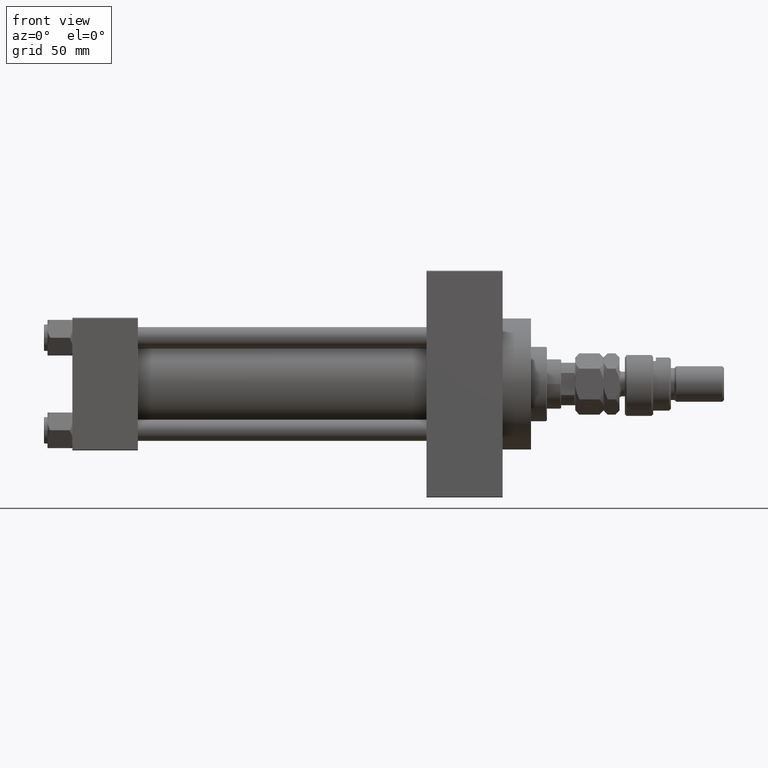
[diagram: clean part render]
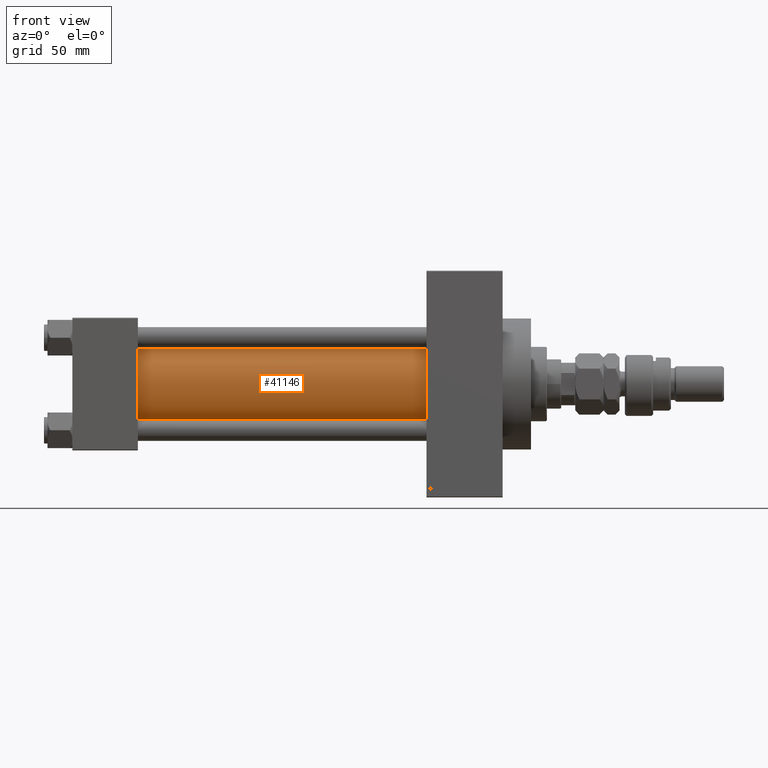
[diagram: same view with one face highlighted and labeled with its STEP entity id]
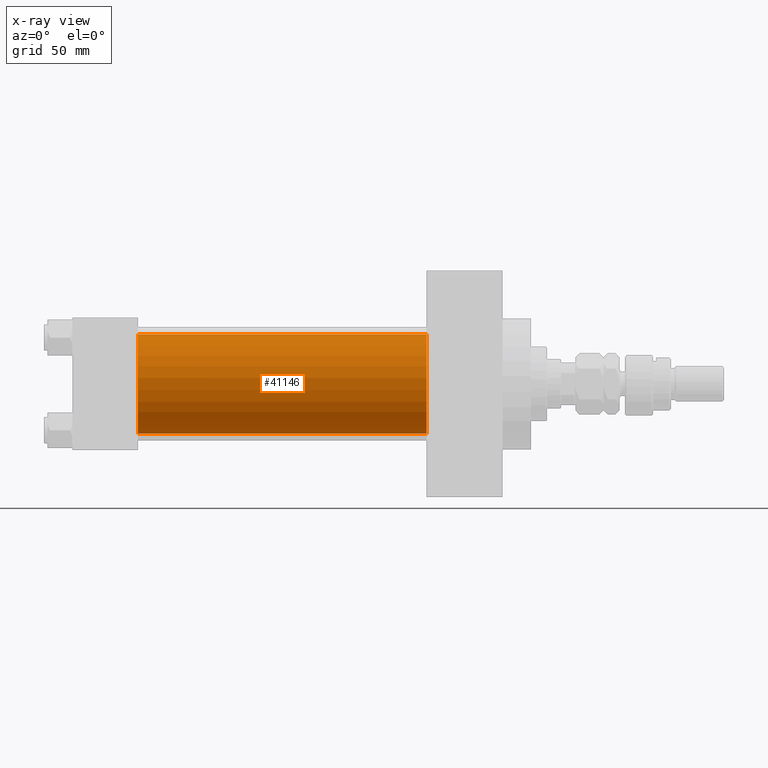
[diagram: x-ray of the same camera — body ghosted, the highlighted face saturated]
A machine part, front view. The second image highlights one B-rep face of the part: STEP entity #41146.
The next image is the same camera in x-ray: the body ghosted, the highlighted face saturated — about 0% of this face is hidden behind the body in this view.
In plain terms, the highlighted cylindrical surface (partial cylindrical patch) has radius 28 mm, axis along (-1, -0, -0).
Its self-contained STEP definition (entity closure, byte-faithful):
#609 = EDGE_CURVE ( 'NONE', #34368, #45056, #12576, .T. ) ;
#4954 = AXIS2_PLACEMENT_3D ( 'NONE', #40823, #45313, #9040 ) ;
#7223 = CARTESIAN_POINT ( 'NONE',  ( 37.00000000000000711, -2.602085213965210642E-15, 28.00000000000000000 ) ) ;
#9040 = DIRECTION ( 'NONE',  ( 0.000000000000000000, 0.000000000000000000, 1.000000000000000000 ) ) ;
#9341 = DIRECTION ( 'NONE',  ( 0.000000000000000000, 0.000000000000000000, 1.000000000000000000 ) ) ;
#10136 = VECTOR ( 'NONE', #26984, 1000.000000000000000 ) ;
#10578 = LINE ( 'NONE', #18279, #24791 ) ;
#11435 = VERTEX_POINT ( 'NONE', #7223 ) ;
#12576 = CIRCLE ( 'NONE', #51464, 28.00000000000000000 ) ;
#13327 = CARTESIAN_POINT ( 'NONE',  ( 37.00000000000000711, -2.602085213965210642E-15, 0.000000000000000000 ) ) ;
#13462 = EDGE_CURVE ( 'NONE', #45056, #31511, #10578, .T. ) ;
#18279 = CARTESIAN_POINT ( 'NONE',  ( 200.0000000000000000, 8.269258236473784371E-16, -28.00000000000000000 ) ) ;
#19151 = CARTESIAN_POINT ( 'NONE',  ( 200.0000000000000000, 8.269258236473784371E-16, -28.00000000000000000 ) ) ;
#22629 = EDGE_CURVE ( 'NONE', #11435, #31511, #51686, .T. ) ;
#24791 = VECTOR ( 'NONE', #38126, 1000.000000000000000 ) ;
#26187 = LINE ( 'NONE', #26724, #10136 ) ;
#26724 = CARTESIAN_POINT ( 'NONE',  ( 200.0000000000000000, -2.602085213965210642E-15, 28.00000000000000000 ) ) ;
#26984 = DIRECTION ( 'NONE',  ( -1.000000000000000000, -0.000000000000000000, -0.000000000000000000 ) ) ;
#29165 = CYLINDRICAL_SURFACE ( 'NONE', #4954, 28.00000000000000000 ) ;
#31511 = VERTEX_POINT ( 'NONE', #42436 ) ;
#31606 = EDGE_LOOP ( 'NONE', ( #49924, #33907, #38332, #39208 ) ) ;
#31971 = CARTESIAN_POINT ( 'NONE',  ( 200.0000000000000000, -2.602085213965210642E-15, 0.000000000000000000 ) ) ;
#33907 = ORIENTED_EDGE ( 'NONE', *, *, #609, .F. ) ;
#34368 = VERTEX_POINT ( 'NONE', #40015 ) ;
#38126 = DIRECTION ( 'NONE',  ( -1.000000000000000000, -0.000000000000000000, -0.000000000000000000 ) ) ;
#38332 = ORIENTED_EDGE ( 'NONE', *, *, #43853, .T. ) ;
#39208 = ORIENTED_EDGE ( 'NONE', *, *, #22629, .T. ) ;
#40015 = CARTESIAN_POINT ( 'NONE',  ( 200.0000000000000000, -2.602085213965210642E-15, 28.00000000000000000 ) ) ;
#40308 = FACE_OUTER_BOUND ( 'NONE', #31606, .T. ) ;
#40823 = CARTESIAN_POINT ( 'NONE',  ( 200.0000000000000000, -2.602085213965210642E-15, 0.000000000000000000 ) ) ;
#40975 = DIRECTION ( 'NONE',  ( 0.000000000000000000, 0.000000000000000000, -1.000000000000000000 ) ) ;
#41146 = ADVANCED_FACE ( 'NONE', ( #40308 ), #29165, .T. ) ;
#41915 = DIRECTION ( 'NONE',  ( 1.000000000000000000, -0.000000000000000000, 0.000000000000000000 ) ) ;
#42436 = CARTESIAN_POINT ( 'NONE',  ( 37.00000000000000711, 8.269258236473784371E-16, -28.00000000000000000 ) ) ;
#43853 = EDGE_CURVE ( 'NONE', #34368, #11435, #26187, .T. ) ;
#44159 = DIRECTION ( 'NONE',  ( 1.000000000000000000, 0.000000000000000000, 0.000000000000000000 ) ) ;
#45056 = VERTEX_POINT ( 'NONE', #19151 ) ;
#45313 = DIRECTION ( 'NONE',  ( -1.000000000000000000, -0.000000000000000000, -0.000000000000000000 ) ) ;
#49924 = ORIENTED_EDGE ( 'NONE', *, *, #13462, .F. ) ;
#50014 = AXIS2_PLACEMENT_3D ( 'NONE', #13327, #41915, #9341 ) ;
#51464 = AXIS2_PLACEMENT_3D ( 'NONE', #31971, #44159, #40975 ) ;
#51686 = CIRCLE ( 'NONE', #50014, 28.00000000000000000 ) ;